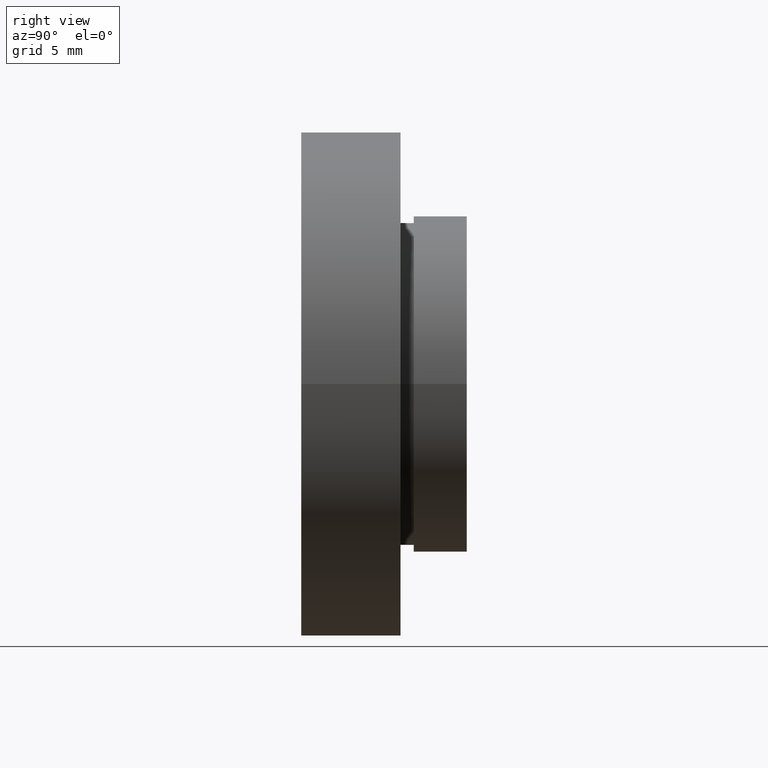
[diagram: clean part render]
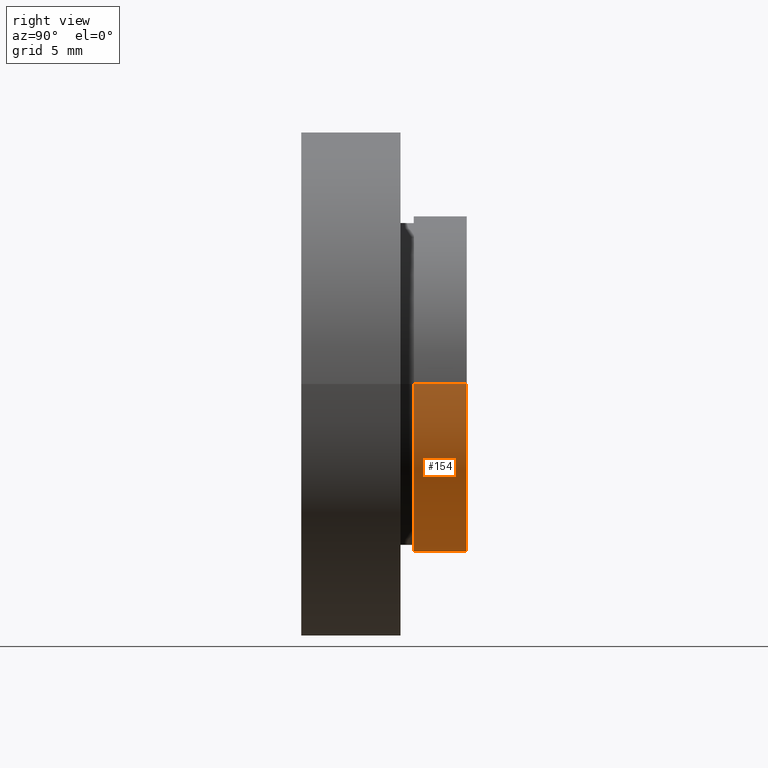
[diagram: same view with one face highlighted and labeled with its STEP entity id]
A machine part, right view. The second image highlights one B-rep face of the part: STEP entity #154.
In plain terms, the highlighted cylindrical surface (partial cylindrical patch) has radius 12.71 mm, axis along (-0, 1, -0).
Its self-contained STEP definition (entity closure, byte-faithful):
#3 = AXIS2_PLACEMENT_3D ( 'NONE', #568, #381, #423 ) ;
#10 = CARTESIAN_POINT ( 'NONE',  ( 5.371323195044477300E-016, 12.49999999999999500, 0.0000000000000000000 ) ) ;
#12 = DIRECTION ( 'NONE',  ( -1.224646799147351000E-016, 1.000000000000000000, -0.0000000000000000000 ) ) ;
#21 = CIRCLE ( 'NONE', #368, 12.71000000000000100 ) ;
#31 = CIRCLE ( 'NONE', #3, 12.70999999999999900 ) ;
#56 = VERTEX_POINT ( 'NONE', #208 ) ;
#59 = VERTEX_POINT ( 'NONE', #341 ) ;
#63 = DIRECTION ( 'NONE',  ( -1.224646799147351000E-016, 1.000000000000000000, -0.0000000000000000000 ) ) ;
#65 = LINE ( 'NONE', #494, #254 ) ;
#75 = ORIENTED_EDGE ( 'NONE', *, *, #205, .F. ) ;
#123 = CARTESIAN_POINT ( 'NONE',  ( 12.71000000000000300, 8.500000000000000000, 1.556526081716286200E-015 ) ) ;
#154 = ADVANCED_FACE ( 'NONE', ( #506 ), #530, .T. ) ;
#205 = EDGE_CURVE ( 'NONE', #508, #59, #21, .T. ) ;
#208 = CARTESIAN_POINT ( 'NONE',  ( -12.70999999999999700, 8.499999999999996400, 0.0000000000000000000 ) ) ;
#217 = VERTEX_POINT ( 'NONE', #123 ) ;
#254 = VECTOR ( 'NONE', #406, 1000.000000000000000 ) ;
#271 = DIRECTION ( 'NONE',  ( -1.000000000000000000, 0.0000000000000000000, 0.0000000000000000000 ) ) ;
#301 = AXIS2_PLACEMENT_3D ( 'NONE', #384, #63, #271 ) ;
#328 = ORIENTED_EDGE ( 'NONE', *, *, #503, .F. ) ;
#333 = CARTESIAN_POINT ( 'NONE',  ( 12.70999999999999900, 16.88601823708207700, 1.556526081716285800E-015 ) ) ;
#341 = CARTESIAN_POINT ( 'NONE',  ( -12.71000000000000100, 12.49999999999999300, 0.0000000000000000000 ) ) ;
#368 = AXIS2_PLACEMENT_3D ( 'NONE', #10, #12, #449 ) ;
#381 = DIRECTION ( 'NONE',  ( -1.224646799147351000E-016, 1.000000000000000000, -0.0000000000000000000 ) ) ;
#384 = CARTESIAN_POINT ( 'NONE',  ( 0.0000000000000000000, 16.88601823708207700, 0.0000000000000000000 ) ) ;
#390 = ORIENTED_EDGE ( 'NONE', *, *, #477, .T. ) ;
#406 = DIRECTION ( 'NONE',  ( -1.224646799147351000E-016, 1.000000000000000000, -0.0000000000000000000 ) ) ;
#421 = LINE ( 'NONE', #333, #516 ) ;
#423 = DIRECTION ( 'NONE',  ( -1.000000000000000000, -1.364849312334230700E-016, 0.0000000000000000000 ) ) ;
#425 = CARTESIAN_POINT ( 'NONE',  ( 12.71000000000000300, 12.49999999999999600, 1.556526081716286200E-015 ) ) ;
#427 = EDGE_LOOP ( 'NONE', ( #328, #570, #390, #75 ) ) ;
#449 = DIRECTION ( 'NONE',  ( -1.000000000000000000, -1.364849312334230500E-016, 0.0000000000000000000 ) ) ;
#477 = EDGE_CURVE ( 'NONE', #56, #59, #65, .T. ) ;
#487 = EDGE_CURVE ( 'NONE', #217, #56, #31, .T. ) ;
#494 = CARTESIAN_POINT ( 'NONE',  ( -12.70999999999999900, 16.88601823708207700, 0.0000000000000000000 ) ) ;
#503 = EDGE_CURVE ( 'NONE', #217, #508, #421, .T. ) ;
#506 = FACE_OUTER_BOUND ( 'NONE', #427, .T. ) ;
#508 = VERTEX_POINT ( 'NONE', #425 ) ;
#516 = VECTOR ( 'NONE', #563, 1000.000000000000000 ) ;
#530 = CYLINDRICAL_SURFACE ( 'NONE', #301, 12.70999999999999900 ) ;
#563 = DIRECTION ( 'NONE',  ( -1.224646799147351000E-016, 1.000000000000000000, -0.0000000000000000000 ) ) ;
#568 = CARTESIAN_POINT ( 'NONE',  ( 1.026991039163387700E-015, 8.499999999999998200, 0.0000000000000000000 ) ) ;
#570 = ORIENTED_EDGE ( 'NONE', *, *, #487, .T. ) ;